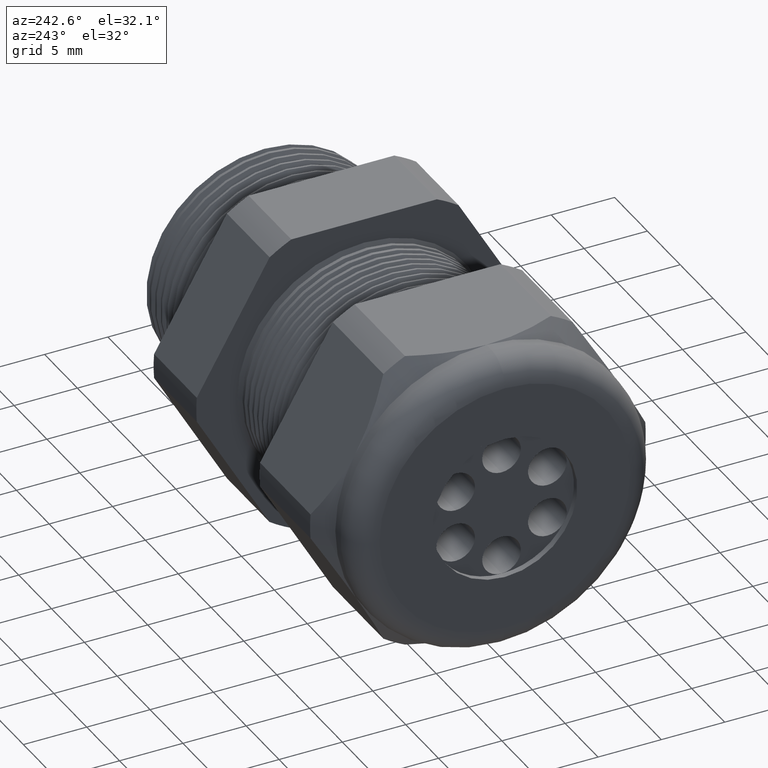
[diagram: clean part render]
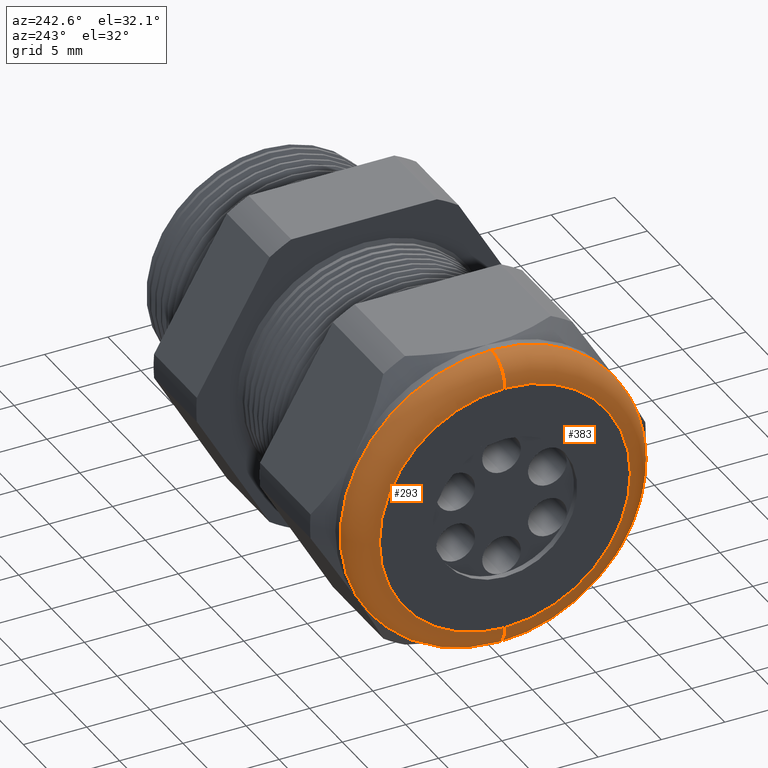
[diagram: same view with one multi-face feature highlighted, each face labeled with its STEP entity id]
A machine part, auxiliary view. The highlighted faces form ONE feature: a constant-radius fillet chain: 2 tangent blend faces with common blend radius 2.032 mm. The faces share edges in the B-rep.
Their STEP definitions:
[1] entity #383 (Torus):
#350 = VERTEX_POINT ( 'NONE', #1955 ) ;
#351 = VERTEX_POINT ( 'NONE', #1954 ) ;
#353 = EDGE_CURVE ( 'NONE', #350, #354, #1953, .T. ) ;
#354 = VERTEX_POINT ( 'NONE', #1948 ) ;
#357 = VERTEX_POINT ( 'NONE', #1942 ) ;
#359 = EDGE_CURVE ( 'NONE', #351, #357, #1940, .T. ) ;
#383 = ADVANCED_FACE ( 'NONE', ( #2035 ), #2031, .T. ) ;
#384 = ORIENTED_EDGE ( 'NONE', *, *, #353, .F. ) ;
#385 = ORIENTED_EDGE ( 'NONE', *, *, #3480, .F. ) ;
#386 = ORIENTED_EDGE ( 'NONE', *, *, #359, .T. ) ;
#387 = ORIENTED_EDGE ( 'NONE', *, *, #3303, .F. ) ;
#402 = EDGE_LOOP ( 'NONE', ( #384, #385, #386, #387 ) ) ;
#1940 = CIRCLE ( 'NONE', #2003, 0.07999999999999996000 ) ;
#1942 = CARTESIAN_POINT ( 'NONE',  ( -1.409999999999999900, 0.0000000000000000000, 0.3899999999999999600 ) ) ;
#1948 = CARTESIAN_POINT ( 'NONE',  ( -1.409999999999999900, 5.265981236333617600E-017, -0.3899999999999999600 ) ) ;
#1949 = DIRECTION ( 'NONE',  ( 0.0000000000000000000, -1.224646799147353900E-016, 1.000000000000000000 ) ) ;
#1950 = DIRECTION ( 'NONE',  ( 0.0000000000000000000, 1.000000000000000000, 1.224646799147353200E-016 ) ) ;
#1951 = CARTESIAN_POINT ( 'NONE',  ( -1.330000000000000100, 4.776122516674676800E-017, -0.3899999999999999600 ) ) ;
#1952 = AXIS2_PLACEMENT_3D ( 'NONE', #1951, #1950, #1949 ) ;
#1953 = CIRCLE ( 'NONE', #1952, 0.07999999999999996000 ) ;
#1954 = CARTESIAN_POINT ( 'NONE',  ( -1.330000000000000100, 5.755839955992558400E-017, 0.4699999999999999200 ) ) ;
#1955 = CARTESIAN_POINT ( 'NONE',  ( -1.330000000000000100, 0.0000000000000000000, -0.4699999999999999200 ) ) ;
#2000 = DIRECTION ( 'NONE',  ( 0.0000000000000000000, 0.0000000000000000000, -1.000000000000000000 ) ) ;
#2001 = DIRECTION ( 'NONE',  ( 0.0000000000000000000, -1.000000000000000000, 0.0000000000000000000 ) ) ;
#2002 = CARTESIAN_POINT ( 'NONE',  ( -1.330000000000000100, 0.0000000000000000000, 0.3899999999999999600 ) ) ;
#2003 = AXIS2_PLACEMENT_3D ( 'NONE', #2002, #2001, #2000 ) ;
#2027 = DIRECTION ( 'NONE',  ( 0.0000000000000000000, 0.0000000000000000000, 1.000000000000000000 ) ) ;
#2028 = DIRECTION ( 'NONE',  ( -1.000000000000000000, 0.0000000000000000000, 0.0000000000000000000 ) ) ;
#2029 = CARTESIAN_POINT ( 'NONE',  ( -1.330000000000000100, 0.0000000000000000000, 0.0000000000000000000 ) ) ;
#2030 = AXIS2_PLACEMENT_3D ( 'NONE', #2029, #2028, #2027 ) ;
#2031 = TOROIDAL_SURFACE ( 'NONE', #2030, 0.3899999999999999600, 0.08000000000000000200 ) ;
#2035 = FACE_OUTER_BOUND ( 'NONE', #402, .T. ) ;
#3303 = EDGE_CURVE ( 'NONE', #354, #357, #4327, .T. ) ;
#3480 = EDGE_CURVE ( 'NONE', #351, #350, #4587, .T. ) ;
#4315 = DIRECTION ( 'NONE',  ( 0.0000000000000000000, 0.0000000000000000000, 1.000000000000000000 ) ) ;
#4316 = DIRECTION ( 'NONE',  ( -1.000000000000000000, 0.0000000000000000000, 0.0000000000000000000 ) ) ;
#4317 = CARTESIAN_POINT ( 'NONE',  ( -1.409999999999999900, 0.0000000000000000000, 0.0000000000000000000 ) ) ;
#4326 = AXIS2_PLACEMENT_3D ( 'NONE', #4317, #4316, #4315 ) ;
#4327 = CIRCLE ( 'NONE', #4326, 0.3899999999999999600 ) ;
#4583 = DIRECTION ( 'NONE',  ( 0.0000000000000000000, 0.0000000000000000000, 1.000000000000000000 ) ) ;
#4584 = DIRECTION ( 'NONE',  ( 1.000000000000000000, 0.0000000000000000000, 0.0000000000000000000 ) ) ;
#4585 = CARTESIAN_POINT ( 'NONE',  ( -1.330000000000000100, 0.0000000000000000000, 0.0000000000000000000 ) ) ;
#4586 = AXIS2_PLACEMENT_3D ( 'NONE', #4585, #4584, #4583 ) ;
#4587 = CIRCLE ( 'NONE', #4586, 0.4699999999999999200 ) ;
[2] entity #293 (Torus):
#293 = ADVANCED_FACE ( 'NONE', ( #1876 ), #1875, .T. ) ;
#294 = EDGE_LOOP ( 'NONE', ( #348, #352, #355, #358 ) ) ;
#348 = ORIENTED_EDGE ( 'NONE', *, *, #349, .F. ) ;
#349 = EDGE_CURVE ( 'NONE', #350, #351, #1960, .T. ) ;
#350 = VERTEX_POINT ( 'NONE', #1955 ) ;
#351 = VERTEX_POINT ( 'NONE', #1954 ) ;
#352 = ORIENTED_EDGE ( 'NONE', *, *, #353, .T. ) ;
#353 = EDGE_CURVE ( 'NONE', #350, #354, #1953, .T. ) ;
#354 = VERTEX_POINT ( 'NONE', #1948 ) ;
#355 = ORIENTED_EDGE ( 'NONE', *, *, #356, .F. ) ;
#356 = EDGE_CURVE ( 'NONE', #357, #354, #1947, .T. ) ;
#357 = VERTEX_POINT ( 'NONE', #1942 ) ;
#358 = ORIENTED_EDGE ( 'NONE', *, *, #359, .F. ) ;
#359 = EDGE_CURVE ( 'NONE', #351, #357, #1940, .T. ) ;
#1871 = DIRECTION ( 'NONE',  ( 0.0000000000000000000, 0.0000000000000000000, 1.000000000000000000 ) ) ;
#1872 = DIRECTION ( 'NONE',  ( -1.000000000000000000, 0.0000000000000000000, 0.0000000000000000000 ) ) ;
#1873 = CARTESIAN_POINT ( 'NONE',  ( -1.330000000000000100, 0.0000000000000000000, 0.0000000000000000000 ) ) ;
#1874 = AXIS2_PLACEMENT_3D ( 'NONE', #1873, #1872, #1871 ) ;
#1875 = TOROIDAL_SURFACE ( 'NONE', #1874, 0.3899999999999999600, 0.08000000000000000200 ) ;
#1876 = FACE_OUTER_BOUND ( 'NONE', #294, .T. ) ;
#1940 = CIRCLE ( 'NONE', #2003, 0.07999999999999996000 ) ;
#1942 = CARTESIAN_POINT ( 'NONE',  ( -1.409999999999999900, 0.0000000000000000000, 0.3899999999999999600 ) ) ;
#1943 = DIRECTION ( 'NONE',  ( 0.0000000000000000000, 0.0000000000000000000, 1.000000000000000000 ) ) ;
#1944 = DIRECTION ( 'NONE',  ( -1.000000000000000000, 0.0000000000000000000, 0.0000000000000000000 ) ) ;
#1945 = CARTESIAN_POINT ( 'NONE',  ( -1.409999999999999900, 0.0000000000000000000, 0.0000000000000000000 ) ) ;
#1946 = AXIS2_PLACEMENT_3D ( 'NONE', #1945, #1944, #1943 ) ;
#1947 = CIRCLE ( 'NONE', #1946, 0.3899999999999999600 ) ;
#1948 = CARTESIAN_POINT ( 'NONE',  ( -1.409999999999999900, 5.265981236333617600E-017, -0.3899999999999999600 ) ) ;
#1949 = DIRECTION ( 'NONE',  ( 0.0000000000000000000, -1.224646799147353900E-016, 1.000000000000000000 ) ) ;
#1950 = DIRECTION ( 'NONE',  ( 0.0000000000000000000, 1.000000000000000000, 1.224646799147353200E-016 ) ) ;
#1951 = CARTESIAN_POINT ( 'NONE',  ( -1.330000000000000100, 4.776122516674676800E-017, -0.3899999999999999600 ) ) ;
#1952 = AXIS2_PLACEMENT_3D ( 'NONE', #1951, #1950, #1949 ) ;
#1953 = CIRCLE ( 'NONE', #1952, 0.07999999999999996000 ) ;
#1954 = CARTESIAN_POINT ( 'NONE',  ( -1.330000000000000100, 5.755839955992558400E-017, 0.4699999999999999200 ) ) ;
#1955 = CARTESIAN_POINT ( 'NONE',  ( -1.330000000000000100, 0.0000000000000000000, -0.4699999999999999200 ) ) ;
#1956 = DIRECTION ( 'NONE',  ( 0.0000000000000000000, 0.0000000000000000000, 1.000000000000000000 ) ) ;
#1957 = DIRECTION ( 'NONE',  ( 1.000000000000000000, 0.0000000000000000000, 0.0000000000000000000 ) ) ;
#1958 = CARTESIAN_POINT ( 'NONE',  ( -1.330000000000000100, 0.0000000000000000000, 0.0000000000000000000 ) ) ;
#1959 = AXIS2_PLACEMENT_3D ( 'NONE', #1958, #1957, #1956 ) ;
#1960 = CIRCLE ( 'NONE', #1959, 0.4699999999999999200 ) ;
#2000 = DIRECTION ( 'NONE',  ( 0.0000000000000000000, 0.0000000000000000000, -1.000000000000000000 ) ) ;
#2001 = DIRECTION ( 'NONE',  ( 0.0000000000000000000, -1.000000000000000000, 0.0000000000000000000 ) ) ;
#2002 = CARTESIAN_POINT ( 'NONE',  ( -1.330000000000000100, 0.0000000000000000000, 0.3899999999999999600 ) ) ;
#2003 = AXIS2_PLACEMENT_3D ( 'NONE', #2002, #2001, #2000 ) ;